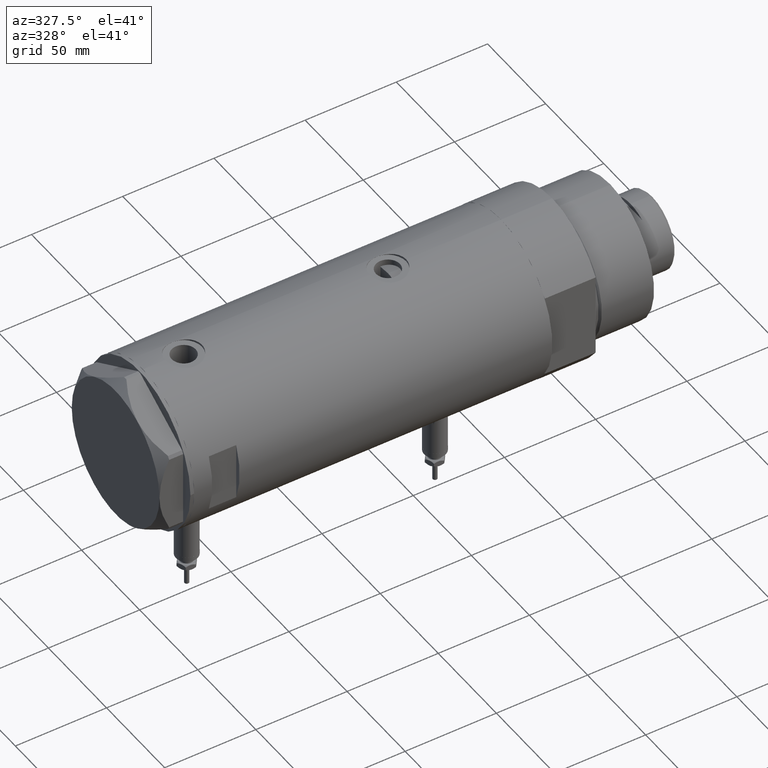
[diagram: clean part render]
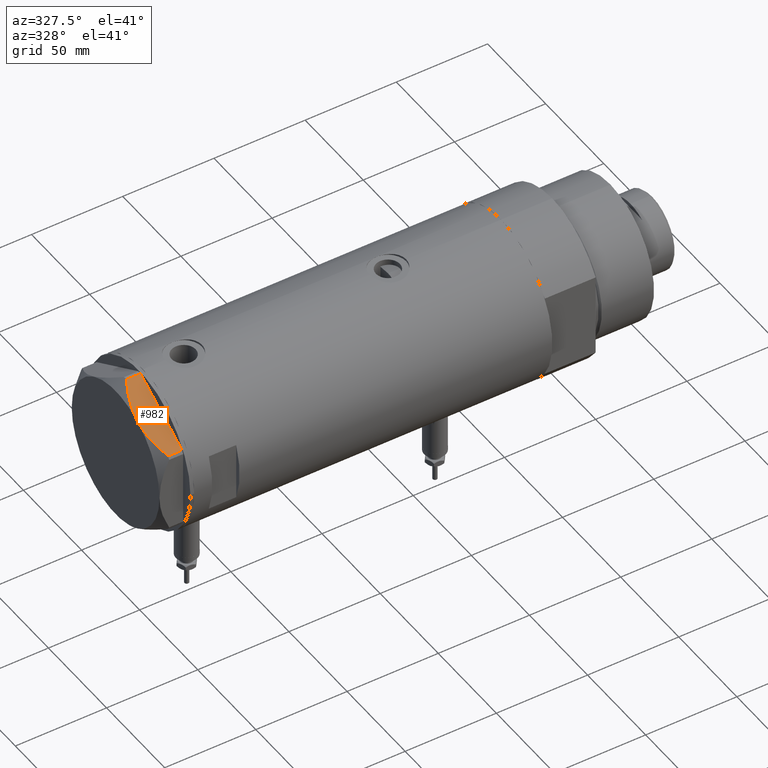
[diagram: same view with one face highlighted and labeled with its STEP entity id]
A machine part, auxiliary view. The second image highlights one B-rep face of the part: STEP entity #982.
In plain terms, the highlighted planar face has unit normal (-0, 0.5, -0.866).
Its self-contained STEP definition (entity closure, byte-faithful):
#5 = CARTESIAN_POINT ( 'NONE',  ( -36.78005154776155905, -22.35497266190830246, 7.709124142616896158 ) ) ;
#24 = CARTESIAN_POINT ( 'NONE',  ( -20.44120046918716582, -31.78821273037243245, 12.96759879420491579 ) ) ;
#121 = CARTESIAN_POINT ( 'NONE',  ( -5.984301592053449248, -40.13490718873278951, 10.17879673963541087 ) ) ;
#150 = CARTESIAN_POINT ( 'NONE',  ( -0.9699484522420150912, -43.02994532381475068, 7.709124142618884790 ) ) ;
#189 = CARTESIAN_POINT ( 'NONE',  ( -36.78005154776141694, -22.35497266190838772, 13.00000000000000000 ) ) ;
#257 = LINE ( 'NONE', #3904, #4848 ) ;
#396 = CARTESIAN_POINT ( 'NONE',  ( -17.32290914057169928, -33.58855906836025440, 12.99999999999999822 ) ) ;
#541 = CARTESIAN_POINT ( 'NONE',  ( -8.949419886525276979, -38.42299534324038746, 11.30742055474529195 ) ) ;
#630 = FACE_OUTER_BOUND ( 'NONE', #4843, .T. ) ;
#757 = CARTESIAN_POINT ( 'NONE',  ( -37.74999999999999289, -21.79497266190838189, 0.000000000000000000 ) ) ;
#765 = VECTOR ( 'NONE', #2142, 1000.000000000000227 ) ;
#921 = CARTESIAN_POINT ( 'NONE',  ( -22.79667224021351757, -30.42828046930181074, 12.73960743196720280 ) ) ;
#954 = CARTESIAN_POINT ( 'NONE',  ( -18.87499999999999645, -32.69245899286255508, 13.00000000000000000 ) ) ;
#982 = ADVANCED_FACE ( 'NONE', ( #630 ), #2341, .F. ) ;
#1079 = VERTEX_POINT ( 'NONE', #1440 ) ;
#1298 = VERTEX_POINT ( 'NONE', #1731 ) ;
#1414 = CARTESIAN_POINT ( 'NONE',  ( -3.804046002727119014, -41.39367834013252434, 9.210778219601836625 ) ) ;
#1427 = AXIS2_PLACEMENT_3D ( 'NONE', #2404, #4277, #4212 ) ;
#1440 = CARTESIAN_POINT ( 'NONE',  ( -36.78005154776141694, -22.35497266190838772, 0.000000000000000000 ) ) ;
#1518 = DIRECTION ( 'NONE',  ( -0.000000000000000000, 0.000000000000000000, -1.000000000000000000 ) ) ;
#1563 = ORIENTED_EDGE ( 'NONE', *, *, #2337, .T. ) ;
#1731 = CARTESIAN_POINT ( 'NONE',  ( -18.87499999999999645, -32.69245899286255508, 13.00000000000000000 ) ) ;
#1774 = CARTESIAN_POINT ( 'NONE',  ( -12.72654504259227259, -36.24227111762220943, 12.37795492145981235 ) ) ;
#1858 = CARTESIAN_POINT ( 'NONE',  ( -8.199247025946510448, -38.85610784623428060, 11.04644118613120085 ) ) ;
#1913 = CARTESIAN_POINT ( 'NONE',  ( -22.01686507582220997, -30.87850234557913609, 12.83692902789789869 ) ) ;
#2142 = DIRECTION ( 'NONE',  ( 0.8660254037844385966, -0.4999999999999998890, 0.000000000000000000 ) ) ;
#2285 = ORIENTED_EDGE ( 'NONE', *, *, #2942, .F. ) ;
#2337 = EDGE_CURVE ( 'NONE', #1079, #2666, #5972, .T. ) ;
#2341 = PLANE ( 'NONE',  #1427 ) ;
#2404 = CARTESIAN_POINT ( 'NONE',  ( -37.74999999999999289, -21.79497266190838189, 13.00000000000000000 ) ) ;
#2415 = ORIENTED_EDGE ( 'NONE', *, *, #3046, .T. ) ;
#2454 = B_SPLINE_CURVE_WITH_KNOTS ( 'NONE', 3,
 ( #2690, #396, #4097, #1774, #3633, #541, #1858, #4674, #121, #1414, #4244, #150 ),
 .UNSPECIFIED., .F., .F.,
 ( 4, 2, 2, 2, 2, 4 ),
 ( 0.02259271946349905580, 0.02789559809390664002, 0.03319847672431422425, 0.03584991603951802330, 0.03850135535472180848, 0.04380423398512939964 ),
 .UNSPECIFIED. ) ;
#2666 = VERTEX_POINT ( 'NONE', #3996 ) ;
#2690 = CARTESIAN_POINT ( 'NONE',  ( -18.87499999999999645, -32.69245899286255508, 13.00000000000000000 ) ) ;
#2942 = EDGE_CURVE ( 'NONE', #4959, #1298, #4394, .T. ) ;
#3046 = EDGE_CURVE ( 'NONE', #2666, #4366, #257, .T. ) ;
#3203 = CARTESIAN_POINT ( 'NONE',  ( -0.9699484522420150912, -43.02994532381475068, 7.709124142618884790 ) ) ;
#3321 = CARTESIAN_POINT ( 'NONE',  ( -26.62598697109946855, -28.21742457861298803, 11.98878493998158312 ) ) ;
#3505 = ORIENTED_EDGE ( 'NONE', *, *, #3644, .T. ) ;
#3633 = CARTESIAN_POINT ( 'NONE',  ( -11.20965750620535673, -37.11804654508558343, 12.01242981158399914 ) ) ;
#3644 = EDGE_CURVE ( 'NONE', #4959, #1079, #5744, .T. ) ;
#3904 = CARTESIAN_POINT ( 'NONE',  ( -0.9699484522385850571, -43.02994532381674020, 13.00000000000000000 ) ) ;
#3996 = CARTESIAN_POINT ( 'NONE',  ( -0.9699484522385920515, -43.02994532381674020, 0.000000000000000000 ) ) ;
#4097 = CARTESIAN_POINT ( 'NONE',  ( -15.78316139395997908, -34.47753284435064813, 12.87183830165164800 ) ) ;
#4212 = DIRECTION ( 'NONE',  ( -0.8660254037844387076, 0.4999999999999998890, 0.000000000000000000 ) ) ;
#4236 = CARTESIAN_POINT ( 'NONE',  ( -31.09047021924039811, -25.63985397350626272, 10.58681170757598977 ) ) ;
#4244 = CARTESIAN_POINT ( 'NONE',  ( -2.376799045726867732, -42.21769975495670479, 8.489459328479822986 ) ) ;
#4276 = CARTESIAN_POINT ( 'NONE',  ( -36.78005154776155905, -22.35497266190830246, 7.709124142616896158 ) ) ;
#4277 = DIRECTION ( 'NONE',  ( 0.4999999999999998890, 0.8660254037844387076, -0.000000000000000000 ) ) ;
#4366 = VERTEX_POINT ( 'NONE', #3203 ) ;
#4394 = B_SPLINE_CURVE_WITH_KNOTS ( 'NONE', 3,
 ( #4276, #5087, #4236, #3321, #5152, #921, #1913, #24, #5181, #954 ),
 .UNSPECIFIED., .F., .F.,
 ( 4, 2, 2, 2, 4 ),
 ( 0.001231023567492484571, 0.01191187151549577550, 0.01725229548949741565, 0.01992250747649823572, 0.02259271946349905580 ),
 .UNSPECIFIED. ) ;
#4674 = CARTESIAN_POINT ( 'NONE',  ( -6.717640657183465258, -39.71151368207270593, 10.48240969891360663 ) ) ;
#4843 = EDGE_LOOP ( 'NONE', ( #2285, #3505, #1563, #2415, #5012 ) ) ;
#4848 = VECTOR ( 'NONE', #5756, 1000.000000000000000 ) ;
#4959 = VERTEX_POINT ( 'NONE', #5 ) ;
#5012 = ORIENTED_EDGE ( 'NONE', *, *, #5597, .F. ) ;
#5087 = CARTESIAN_POINT ( 'NONE',  ( -33.96695484073207183, -23.97911480296823683, 9.269459228581803600 ) ) ;
#5152 = CARTESIAN_POINT ( 'NONE',  ( -25.11263918036253884, -29.09115633297249204, 12.35956205105863326 ) ) ;
#5181 = CARTESIAN_POINT ( 'NONE',  ( -19.65653997226998584, -32.24123667949004357, 13.00000000000000178 ) ) ;
#5315 = VECTOR ( 'NONE', #1518, 1000.000000000000000 ) ;
#5597 = EDGE_CURVE ( 'NONE', #1298, #4366, #2454, .T. ) ;
#5744 = LINE ( 'NONE', #189, #5315 ) ;
#5756 = DIRECTION ( 'NONE',  ( 0.000000000000000000, 0.000000000000000000, 1.000000000000000000 ) ) ;
#5972 = LINE ( 'NONE', #757, #765 ) ;